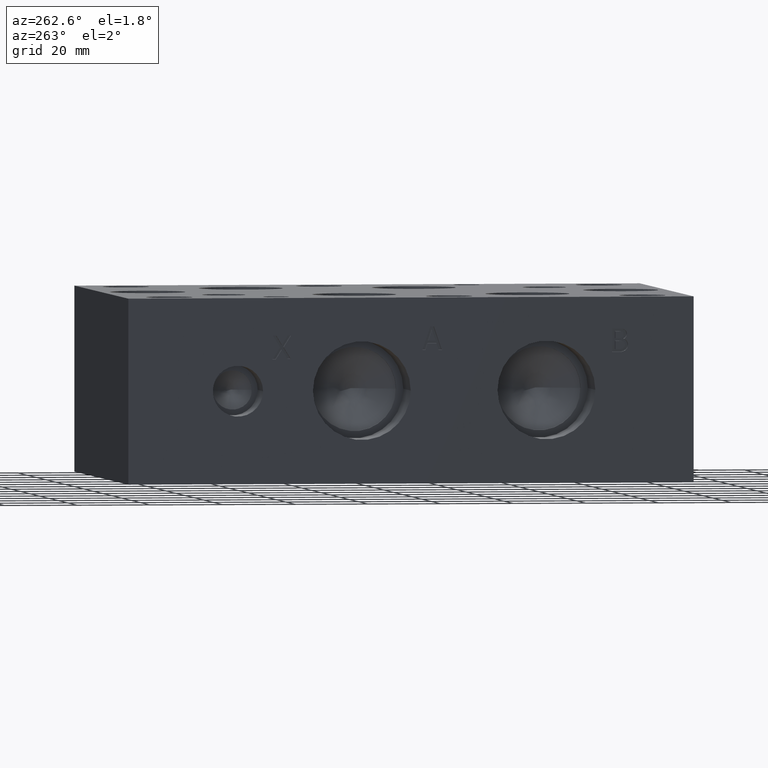
[diagram: clean part render]
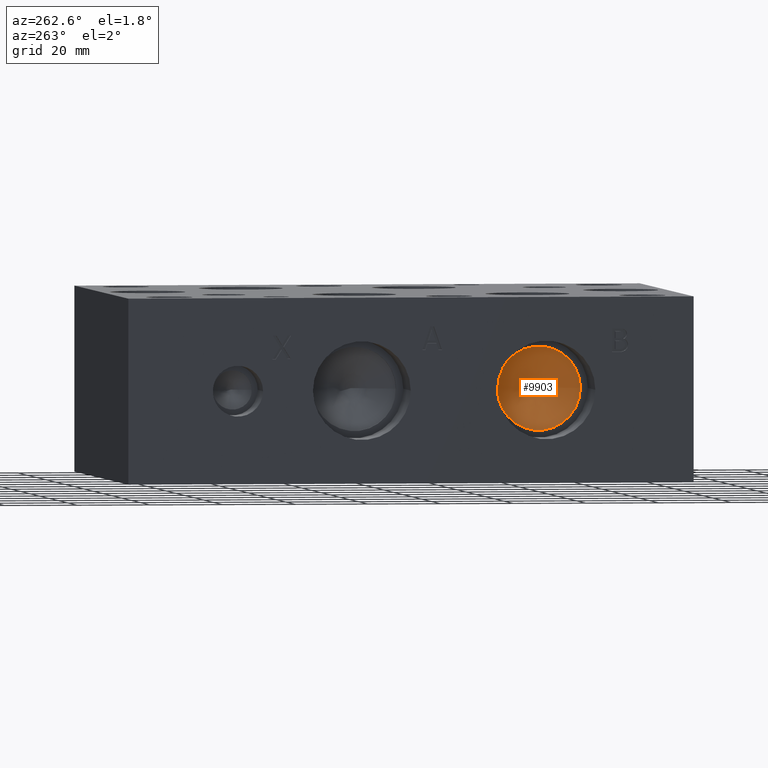
[diagram: same view with one face highlighted and labeled with its STEP entity id]
A machine part, auxiliary view. The second image highlights one B-rep face of the part: STEP entity #9903.
In plain terms, the highlighted conical surface has half-angle 60 deg.
Its self-contained STEP definition (entity closure, byte-faithful):
#54=CONICAL_SURFACE('',#10312,5.7531,1.0471975511966);
#102=CIRCLE('',#10313,11.5062);
#103=CIRCLE('',#10314,11.5062);
#1151=FACE_OUTER_BOUND('',#1707,.T.);
#1707=EDGE_LOOP('',(#8424,#8425,#8426,#8427));
#2701=LINE('',#16763,#3653);
#3653=VECTOR('',#12050,5.7531);
#4523=VERTEX_POINT('',#16759);
#4524=VERTEX_POINT('',#16760);
#4525=VERTEX_POINT('',#16762);
#5859=EDGE_CURVE('',#4523,#4524,#102,.T.);
#5860=EDGE_CURVE('',#4524,#4525,#2701,.T.);
#5861=EDGE_CURVE('',#4524,#4523,#103,.T.);
#8424=ORIENTED_EDGE('',*,*,#5859,.T.);
#8425=ORIENTED_EDGE('',*,*,#5860,.T.);
#8426=ORIENTED_EDGE('',*,*,#5860,.F.);
#8427=ORIENTED_EDGE('',*,*,#5861,.T.);
#9903=ADVANCED_FACE('',(#1151),#54,.F.);
#10312=AXIS2_PLACEMENT_3D('',#16758,#12046,#12047);
#10313=AXIS2_PLACEMENT_3D('',#16761,#12048,#12049);
#10314=AXIS2_PLACEMENT_3D('',#16764,#12051,#12052);
#12046=DIRECTION('center_axis',(-1.,0.,0.));
#12047=DIRECTION('ref_axis',(0.,1.,0.));
#12048=DIRECTION('center_axis',(-1.,0.,0.));
#12049=DIRECTION('ref_axis',(0.,1.,0.));
#12050=DIRECTION('',(0.5,0.866025403784439,-1.06057523872491E-16));
#12051=DIRECTION('center_axis',(-1.,0.,0.));
#12052=DIRECTION('ref_axis',(0.,1.,0.));
#16758=CARTESIAN_POINT('Origin',(19.8354638336748,40.513,25.4));
#16759=CARTESIAN_POINT('',(16.51391,52.0192,25.4));
#16760=CARTESIAN_POINT('',(16.51391,29.0068,25.4));
#16761=CARTESIAN_POINT('Origin',(16.51391,40.513,25.4));
#16762=CARTESIAN_POINT('',(23.1570176673497,40.513,25.4));
#16763=CARTESIAN_POINT('',(19.8354638336748,34.7599,25.4));
#16764=CARTESIAN_POINT('Origin',(16.51391,40.513,25.4));